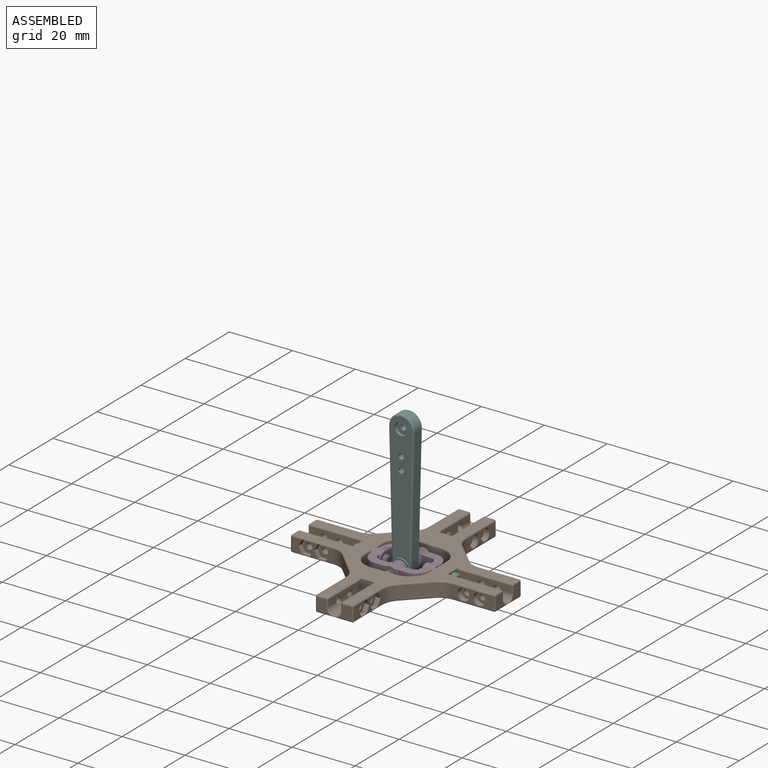
[diagram: assembled view]
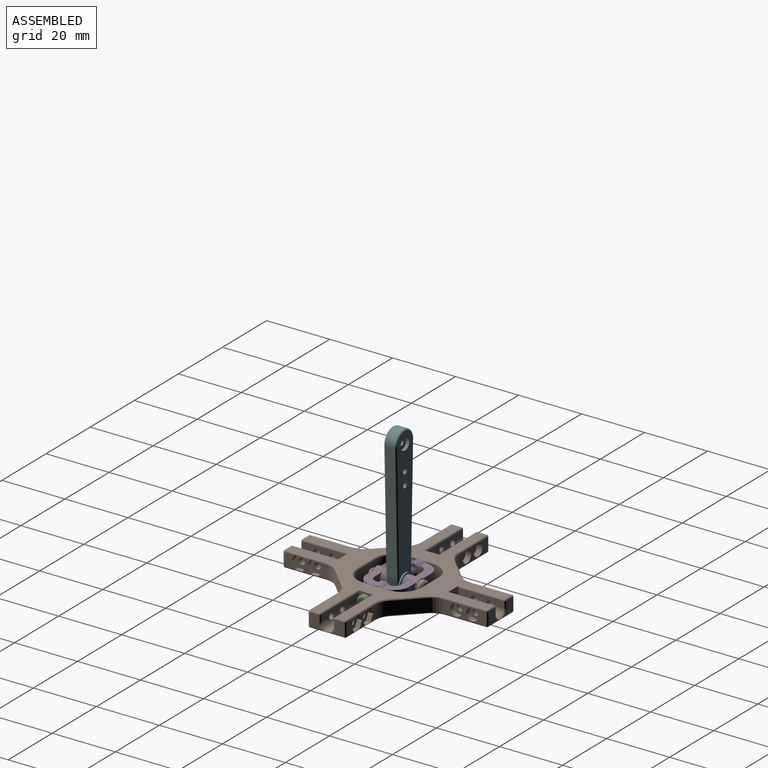
[diagram: assembled view, second angle]
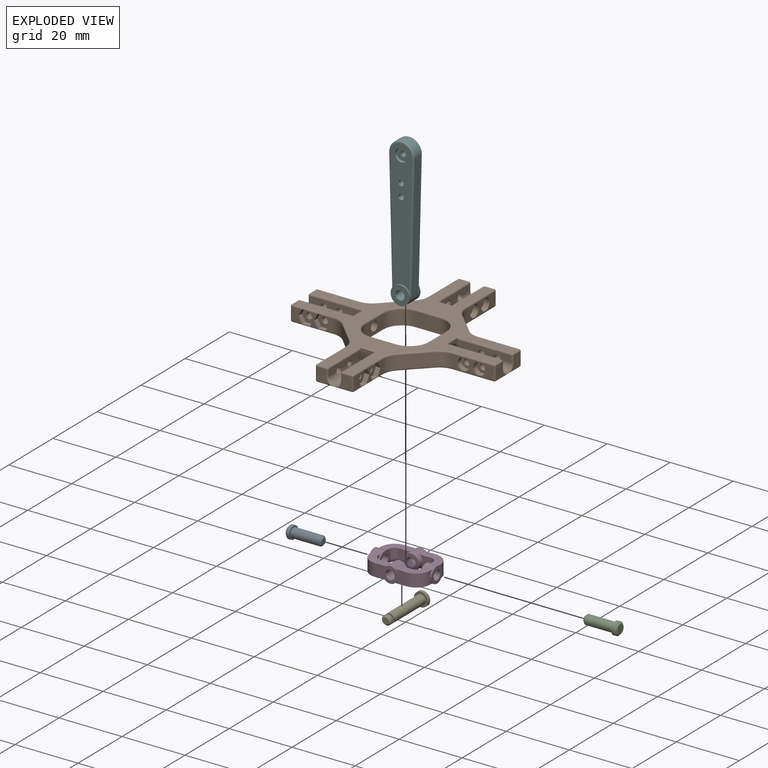
[diagram: exploded view]
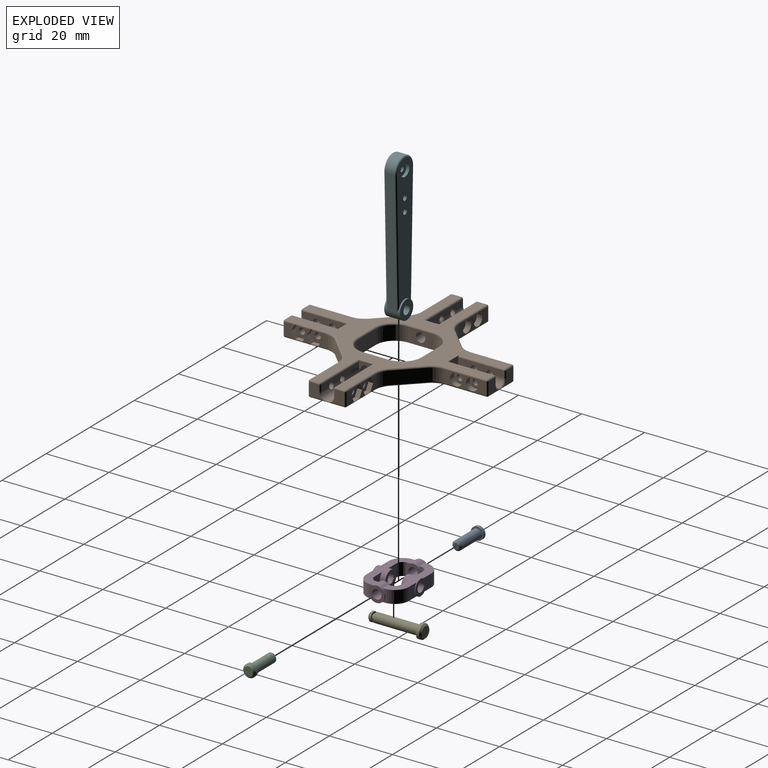
[diagram: exploded view, second angle]
ASSEMBLY  parts=6 mates=5
PART A: 7 faces, bbox 11x4x4 mm
  f0: plane 2x2mm, normal (-1,0,0), area 3.1mm2, adj f6
  f1: plane 3x3mm, normal (1,0,0), area 7.1mm2, adj f2
  f2: cone r=2mm half-angle=45deg, axis (-1,0,0), area 7.8mm2, adj f1,f3
  f3: cylinder r=2mm len=4mm, axis (1,0,0), area 12.6mm2, adj f2,f4
  f4: plane 4x4mm, normal (-1,0,0), area 5.5mm2, adj f3,f5
  f5: cylinder r=1.5mm len=9mm, axis (1,0,0), area 84.8mm2, adj f4,f6
  f6: cone r=1mm half-angle=45deg, axis (1,0,0), area 5.6mm2, adj f0,f5
PART B: 264 faces, bbox 65x65x5.6 mm
  f0: plane 4x3.23mm, normal (1,0,0), area 10.6mm2, adj f47,f48,f51,f227,f258
  f1: plane 4x2.46mm, normal (1,0,0), area 5.2mm2, adj f40,f41,f44,f45,f227,f258
  f2: plane 4x2.26mm, normal (0,1,0), area 6.7mm2, adj f107,f108,f166,f214,f251
  f3: plane 4x2.46mm, normal (0,1,0), area 5.2mm2, adj f110,f111,f114,f115,f214,f251
  f4: plane 4x2.26mm, normal (-1,0,0), area 6.7mm2, adj f72,f73,f164,f201,f244
  f5: plane 4x2.46mm, normal (-1,0,0), area 5.2mm2, adj f75,f76,f79,f80,f201,f244
  f6: plane 4x2.26mm, normal (0,-1,0), area 6.7mm2, adj f142,f143,f162,f192,f241
  f7: plane 4x2.46mm, normal (0,-1,0), area 5.2mm2, adj f145,f146,f149,f150,f192,f241
  f8: plane 5.1x4.55mm, normal (0,1,0), area 9.9mm2, adj f18,f20,f62,f63,f64,f197,f222
  f9: plane 5.1x4.55mm, normal (0,-1,0), area 9.9mm2, adj f18,f21,f27,f28,f29,f184,f223
  f10: plane 8x4.5mm, normal (0,1,0), area 28.9mm2, adj f19,f21,f170,f173,f180
  f11: plane 8x4.5mm, normal (1,0,0), area 36mm2, adj f19,f170,f171,f176
  f12: plane 8x4.5mm, normal (0,-1,0), area 28.9mm2, adj f19,f20,f171,f172,f179
  f13: plane 7.5x7.5mm, normal (0.71,-0.71,0), area 42.4mm2, adj f167,f168,f229,f260
  f14: plane 7.5x7.5mm, normal (0.71,0.71,0), area 42.4mm2, adj f165,f166,f216,f253
  f15: plane 7.5x7.5mm, normal (-0.71,0.71,0), area 42.4mm2, adj f163,f164,f203,f246
  f16: plane 7.5x7.5mm, normal (-0.71,-0.71,0), area 42.4mm2, adj f162,f169,f190,f239
  f17: plane 8x4.5mm, normal (-1,0,0), area 36mm2, adj f19,f172,f173,f183
  f18: plane 64x64mm, normal (0,0,1), area 801mm2, adj f8,f9,f174,f175,f176,f177,f178,f179
  f19: plane 64x64mm, normal (0,0,-1), area 1157.9mm2, adj f10,f11,f12,f17,f53,f88,f123,f158
  f20: cylinder r=1.5mm len=5mm, axis (0,-1,0), area 47.1mm2, adj f8,f12
  f21: cylinder r=1.5mm len=5mm, axis (0,-1,0), area 47.1mm2, adj f9,f10
  f22: plane 4x3.92mm, normal (0,-1,0), area 12.4mm2, adj f51,f53,f55,f56,f225
  f23: plane 4x2.26mm, normal (1,0,0), area 6.7mm2, adj f37,f38,f168,f227,f258
  f24: cylinder r=1mm len=2.71mm, axis (-1,0,0), area 15.8mm2, adj f27,f28,f50
  f25: cylinder r=1mm len=2.71mm, axis (-1,0,0), area 15.8mm2, adj f27,f28,f43
  f26: plane 13.03x4mm, normal (-1,0,0), area 29.4mm2, adj f33,f35,f52,f169,f188,f237
  f27: plane 17x2mm, normal (-1,0,0), area 30.9mm2, adj f9,f24,f25,f28,f56,f223
  f28: cylinder r=2.05mm len=17mm, axis (0,1,0), area 103mm2, adj f9,f24,f25,f27,f29,f31,f32,f55
  f29: plane 17x2mm, normal (1,0,0), area 30.9mm2, adj f9,f28,f31,f32,f54,f184
  f30: plane 4x3.92mm, normal (0,-1,0), area 12.4mm2, adj f52,f53,f54,f55,f186
  f31: cylinder r=1mm len=2.46mm, axis (-1,0,0), area 14.2mm2, adj f28,f29,f36
  f32: cylinder r=1mm len=2.46mm, axis (-1,0,0), area 14.2mm2, adj f28,f29,f34
  f33: cylinder r=1.9mm len=3.8mm, axis (-1,0,0), area 20.9mm2, adj f26,f34
  f34: plane 3.8x3.8mm, normal (-1,0,0), area 8.2mm2, adj f32,f33
  f35: cylinder r=1.9mm len=3.8mm, axis (-1,0,0), area 20.9mm2, adj f26,f36
  f36: plane 3.8x3.8mm, normal (-1,0,0), area 8.2mm2, adj f31,f35
  f37: plane 2.1x1.5mm, normal (0,-0.87,0.5), area 3.6mm2, adj f23,f38,f42,f43,f258
  f38: plane 2.1x1.5mm, normal (0,-0.87,-0.5), area 3.6mm2, adj f23,f37,f39,f43,f227
  f39: plane 2.43x1.49mm, normal (0,0,-1), area 3.6mm2, adj f38,f40,f43,f227
  f40: plane 2.1x1.5mm, normal (0,0.87,-0.5), area 3.6mm2, adj f1,f39,f41,f43,f227
  f41: plane 2.1x1.5mm, normal (0,0.87,0.5), area 3.6mm2, adj f1,f40,f42,f43,f258
  f42: plane 2.43x1.49mm, normal (0,0,1), area 3.6mm2, adj f37,f41,f43,f258
  f43: plane 4.85x4.2mm, normal (1,0,0), area 12.1mm2, adj f25,f37,f38,f39,f40,f41,f42
  f44: plane 2.1x1.5mm, normal (0,-0.87,0.5), area 3.6mm2, adj f1,f45,f49,f50,f258
  f45: plane 2.1x1.5mm, normal (0,-0.87,-0.5), area 3.6mm2, adj f1,f44,f46,f50,f227
  f46: plane 2.43x1.49mm, normal (0,0,-1), area 3.6mm2, adj f45,f47,f50,f227
  f47: plane 2.1x1.5mm, normal (0,0.87,-0.5), area 3.6mm2, adj f0,f46,f48,f50,f227
  f48: plane 2.1x1.5mm, normal (0,0.87,0.5), area 3.6mm2, adj f0,f47,f49,f50,f258
  f49: plane 2.43x1.49mm, normal (0,0,1), area 3.6mm2, adj f44,f48,f50,f258
  f50: plane 4.85x4.2mm, normal (1,0,0), area 12.1mm2, adj f24,f44,f45,f46,f47,f48,f49
  f51: cylinder r=0.5mm len=4mm, axis (0,0,-1), area 3.1mm2, adj f0,f22,f226,f257
  f52: cylinder r=0.5mm len=4mm, axis (0,0,1), area 3.1mm2, adj f26,f30,f187,f236
  f53: cylinder r=0.5mm len=11mm, axis (-1,0,0), area 8mm2, adj f19,f22,f30,f55,f236,f257
  f54: cylinder r=0.5mm len=2mm, axis (0,0,-1), area 1.6mm2, adj f29,f30,f55,f185
  f55: torus R=2.55mm, axis (0,-1,0), area 4.9mm2, adj f22,f28,f30,f53,f54,f56
  f56: cylinder r=0.5mm len=2mm, axis (0,0,1), area 1.6mm2, adj f22,f27,f55,f224
  f57: plane 4x3.92mm, normal (0,1,0), area 12.4mm2, adj f86,f88,f90,f91,f199
  f58: plane 4x3.23mm, normal (-1,0,0), area 10.6mm2, adj f82,f83,f86,f201,f244
  f59: cylinder r=1mm len=2.71mm, axis (1,0,0), area 15.8mm2, adj f62,f63,f85
  f60: cylinder r=1mm len=2.71mm, axis (1,0,0), area 15.8mm2, adj f62,f63,f78
  f61: plane 13.03x4mm, normal (1,0,0), area 29.4mm2, adj f68,f70,f87,f165,f218,f255
  f62: plane 17x2mm, normal (1,0,0), area 30.9mm2, adj f8,f59,f60,f63,f91,f197
  f63: cylinder r=2.05mm len=17mm, axis (0,-1,0), area 103mm2, adj f8,f59,f60,f62,f64,f66,f67,f90
  f64: plane 17x2mm, normal (-1,0,0), area 30.9mm2, adj f8,f63,f66,f67,f89,f222
  f65: plane 4x3.92mm, normal (0,1,0), area 12.4mm2, adj f87,f88,f89,f90,f220
  f66: cylinder r=1mm len=2.46mm, axis (1,0,0), area 14.2mm2, adj f63,f64,f71
  f67: cylinder r=1mm len=2.46mm, axis (1,0,0), area 14.2mm2, adj f63,f64,f69
  f68: cylinder r=1.9mm len=3.8mm, axis (1,0,0), area 20.9mm2, adj f61,f69
  f69: plane 3.8x3.8mm, normal (1,0,0), area 8.2mm2, adj f67,f68
  f70: cylinder r=1.9mm len=3.8mm, axis (1,0,0), area 20.9mm2, adj f61,f71
  f71: plane 3.8x3.8mm, normal (1,0,0), area 8.2mm2, adj f66,f70
  f72: plane 2.1x1.5mm, normal (0,0.87,0.5), area 3.6mm2, adj f4,f73,f77,f78,f244
  f73: plane 2.1x1.5mm, normal (0,0.87,-0.5), area 3.6mm2, adj f4,f72,f74,f78,f201
  f74: plane 2.43x1.49mm, normal (0,0,-1), area 3.6mm2, adj f73,f75,f78,f201
  f75: plane 2.1x1.5mm, normal (0,-0.87,-0.5), area 3.6mm2, adj f5,f74,f76,f78,f201
  f76: plane 2.1x1.5mm, normal (0,-0.87,0.5), area 3.6mm2, adj f5,f75,f77,f78,f244
  f77: plane 2.43x1.49mm, normal (0,0,1), area 3.6mm2, adj f72,f76,f78,f244
  f78: plane 4.85x4.2mm, normal (-1,0,0), area 12.1mm2, adj f60,f72,f73,f74,f75,f76,f77
  f79: plane 2.1x1.5mm, normal (0,0.87,0.5), area 3.6mm2, adj f5,f80,f84,f85,f244
  f80: plane 2.1x1.5mm, normal (0,0.87,-0.5), area 3.6mm2, adj f5,f79,f81,f85,f201
  f81: plane 2.43x1.49mm, normal (0,0,-1), area 3.6mm2, adj f80,f82,f85,f201
  f82: plane 2.1x1.5mm, normal (0,-0.87,-0.5), area 3.6mm2, adj f58,f81,f83,f85,f201
  f83: plane 2.1x1.5mm, normal (0,-0.87,0.5), area 3.6mm2, adj f58,f82,f84,f85,f244
  f84: plane 2.43x1.49mm, normal (0,0,1), area 3.6mm2, adj f79,f83,f85,f244
  f85: plane 4.85x4.2mm, normal (-1,0,0), area 12.1mm2, adj f59,f79,f80,f81,f82,f83,f84
  f86: cylinder r=0.5mm len=4mm, axis (0,0,-1), area 3.1mm2, adj f57,f58,f200,f243
  f87: cylinder r=0.5mm len=4mm, axis (0,0,1), area 3.1mm2, adj f61,f65,f219,f256
  f88: cylinder r=0.5mm len=11mm, axis (1,0,0), area 8mm2, adj f19,f57,f65,f90,f243,f256
  f89: cylinder r=0.5mm len=2mm, axis (0,0,-1), area 1.6mm2, adj f64,f65,f90,f221
  f90: torus R=2.55mm, axis (0,1,0), area 4.9mm2, adj f57,f63,f65,f88,f89,f91
  f91: cylinder r=0.5mm len=2mm, axis (0,0,1), area 1.6mm2, adj f57,f62,f90,f198
  f92: plane 4x3.92mm, normal (1,0,0), area 12.4mm2, adj f121,f123,f125,f126,f212
  f93: plane 4x3.23mm, normal (0,1,0), area 10.6mm2, adj f117,f118,f121,f214,f251
  f94: cylinder r=1mm len=2.71mm, axis (0,-1,0), area 15.8mm2, adj f97,f98,f120
  f95: cylinder r=1mm len=2.71mm, axis (0,-1,0), area 15.8mm2, adj f97,f98,f113
  f96: plane 13.03x4mm, normal (0,-1,0), area 29.4mm2, adj f103,f105,f122,f167,f231,f262
  f97: plane 14.5x2mm, normal (0,-1,0), area 25.9mm2, adj f94,f95,f98,f126,f175,f210
  f98: cylinder r=2.05mm len=14.5mm, axis (-1,0,0), area 86.9mm2, adj f94,f95,f97,f99,f101,f102,f125,f175
  f99: plane 14.5x2mm, normal (0,1,0), area 25.9mm2, adj f98,f101,f102,f124,f175,f235
  f100: plane 4x3.92mm, normal (1,0,0), area 12.4mm2, adj f122,f123,f124,f125,f233
  f101: cylinder r=1mm len=2.46mm, axis (0,-1,0), area 14.2mm2, adj f98,f99,f106
  f102: cylinder r=1mm len=2.46mm, axis (0,-1,0), area 14.2mm2, adj f98,f99,f104
  f103: cylinder r=1.9mm len=3.8mm, axis (0,-1,0), area 20.9mm2, adj f96,f104
  f104: plane 3.8x3.8mm, normal (0,-1,0), area 8.2mm2, adj f102,f103
  f105: cylinder r=1.9mm len=3.8mm, axis (0,-1,0), area 20.9mm2, adj f96,f106
  f106: plane 3.8x3.8mm, normal (0,-1,0), area 8.2mm2, adj f101,f105
  f107: plane 2.1x1.5mm, normal (0.87,0,0.5), area 3.6mm2, adj f2,f108,f112,f113,f251
  f108: plane 2.1x1.5mm, normal (0.87,0,-0.5), area 3.6mm2, adj f2,f107,f109,f113,f214
  f109: plane 2.43x1.49mm, normal (0,0,-1), area 3.6mm2, adj f108,f110,f113,f214
  f110: plane 2.1x1.5mm, normal (-0.87,0,-0.5), area 3.6mm2, adj f3,f109,f111,f113,f214
  f111: plane 2.1x1.5mm, normal (-0.87,0,0.5), area 3.6mm2, adj f3,f110,f112,f113,f251
  f112: plane 2.43x1.49mm, normal (0,0,1), area 3.6mm2, adj f107,f111,f113,f251
  f113: plane 4.85x4.2mm, normal (0,1,0), area 12.1mm2, adj f95,f107,f108,f109,f110,f111,f112
  f114: plane 2.1x1.5mm, normal (0.87,0,0.5), area 3.6mm2, adj f3,f115,f119,f120,f251
  f115: plane 2.1x1.5mm, normal (0.87,0,-0.5), area 3.6mm2, adj f3,f114,f116,f120,f214
  f116: plane 2.43x1.49mm, normal (0,0,-1), area 3.6mm2, adj f115,f117,f120,f214
  f117: plane 2.1x1.5mm, normal (-0.87,0,-0.5), area 3.6mm2, adj f93,f116,f118,f120,f214
  f118: plane 2.1x1.5mm, normal (-0.87,0,0.5), area 3.6mm2, adj f93,f117,f119,f120,f251
  f119: plane 2.43x1.49mm, normal (0,0,1), area 3.6mm2, adj f114,f118,f120,f251
  f120: plane 4.85x4.2mm, normal (0,1,0), area 12.1mm2, adj f94,f114,f115,f116,f117,f118,f119
  f121: cylinder r=0.5mm len=4mm, axis (0,0,-1), area 3.1mm2, adj f92,f93,f213,f250
  f122: cylinder r=0.5mm len=4mm, axis (0,0,1), area 3.1mm2, adj f96,f100,f232,f263
  f123: cylinder r=0.5mm len=11mm, axis (0,-1,0), area 8mm2, adj f19,f92,f100,f125,f250,f263
  f124: cylinder r=0.5mm len=2mm, axis (0,0,-1), area 1.6mm2, adj f99,f100,f125,f234
  f125: torus R=2.55mm, axis (1,0,0), area 4.9mm2, adj f92,f98,f100,f123,f124,f126
  f126: cylinder r=0.5mm len=2mm, axis (0,0,1), area 1.6mm2, adj f92,f97,f125,f211
  f127: plane 4x3.92mm, normal (-1,0,0), area 12.4mm2, adj f156,f158,f160,f161,f194
  f128: plane 4x3.23mm, normal (0,-1,0), area 10.6mm2, adj f152,f153,f156,f192,f241
  f129: cylinder r=1mm len=2.71mm, axis (0,1,0), area 15.8mm2, adj f132,f133,f155
  f130: cylinder r=1mm len=2.71mm, axis (0,1,0), area 15.8mm2, adj f132,f133,f148
  f131: plane 13.03x4mm, normal (0,1,0), area 29.4mm2, adj f138,f140,f157,f163,f205,f248
  f132: plane 14.5x2mm, normal (0,1,0), area 25.9mm2, adj f129,f130,f133,f161,f174,f196
  f133: cylinder r=2.05mm len=14.5mm, axis (1,0,0), area 86.9mm2, adj f129,f130,f132,f134,f136,f137,f160,f174
  f134: plane 14.5x2mm, normal (0,-1,0), area 25.9mm2, adj f133,f136,f137,f159,f174,f209
  f135: plane 4x3.92mm, normal (-1,0,0), area 12.4mm2, adj f157,f158,f159,f160,f207
  f136: cylinder r=1mm len=2.46mm, axis (0,1,0), area 14.2mm2, adj f133,f134,f141
  f137: cylinder r=1mm len=2.46mm, axis (0,1,0), area 14.2mm2, adj f133,f134,f139
  f138: cylinder r=1.9mm len=3.8mm, axis (0,1,0), area 20.9mm2, adj f131,f139
  f139: plane 3.8x3.8mm, normal (0,1,0), area 8.2mm2, adj f137,f138
  f140: cylinder r=1.9mm len=3.8mm, axis (0,1,0), area 20.9mm2, adj f131,f141
  f141: plane 3.8x3.8mm, normal (0,1,0), area 8.2mm2, adj f136,f140
  f142: plane 2.1x1.5mm, normal (-0.87,0,0.5), area 3.6mm2, adj f6,f143,f147,f148,f241
  f143: plane 2.1x1.5mm, normal (-0.87,0,-0.5), area 3.6mm2, adj f6,f142,f144,f148,f192
  f144: plane 2.43x1.49mm, normal (0,0,-1), area 3.6mm2, adj f143,f145,f148,f192
  f145: plane 2.1x1.5mm, normal (0.87,0,-0.5), area 3.6mm2, adj f7,f144,f146,f148,f192
  f146: plane 2.1x1.5mm, normal (0.87,0,0.5), area 3.6mm2, adj f7,f145,f147,f148,f241
  f147: plane 2.43x1.49mm, normal (0,0,1), area 3.6mm2, adj f142,f146,f148,f241
  f148: plane 4.85x4.2mm, normal (0,-1,0), area 12.1mm2, adj f130,f142,f143,f144,f145,f146,f147
  f149: plane 2.1x1.5mm, normal (-0.87,0,0.5), area 3.6mm2, adj f7,f150,f154,f155,f241
  f150: plane 2.1x1.5mm, normal (-0.87,0,-0.5), area 3.6mm2, adj f7,f149,f151,f155,f192
  f151: plane 2.43x1.49mm, normal (0,0,-1), area 3.6mm2, adj f150,f152,f155,f192
  f152: plane 2.1x1.5mm, normal (0.87,0,-0.5), area 3.6mm2, adj f128,f151,f153,f155,f192
  f153: plane 2.1x1.5mm, normal (0.87,0,0.5), area 3.6mm2, adj f128,f152,f154,f155,f241
  f154: plane 2.43x1.49mm, normal (0,0,1), area 3.6mm2, adj f149,f153,f155,f241
  f155: plane 4.85x4.2mm, normal (0,-1,0), area 12.1mm2, adj f129,f149,f150,f151,f152,f153,f154
  f156: cylinder r=0.5mm len=4mm, axis (0,0,-1), area 3.1mm2, adj f127,f128,f193,f242
  f157: cylinder r=0.5mm len=4mm, axis (0,0,1), area 3.1mm2, adj f131,f135,f206,f249
  f158: cylinder r=0.5mm len=11mm, axis (0,1,0), area 8mm2, adj f19,f127,f135,f160,f242,f249
  f159: cylinder r=0.5mm len=2mm, axis (0,0,-1), area 1.6mm2, adj f134,f135,f160,f208
  f160: torus R=2.55mm, axis (-1,0,0), area 4.9mm2, adj f127,f133,f135,f158,f159,f161
  f161: cylinder r=0.5mm len=2mm, axis (0,0,1), area 1.6mm2, adj f127,f132,f160,f195
  f162: cylinder r=6mm len=4mm, axis (0,0,-1), area 17.3mm2, adj f6,f16,f191,f240
  f163: cylinder r=6mm len=4mm, axis (0,0,-1), area 17.3mm2, adj f15,f131,f204,f247
  f164: cylinder r=6mm len=4mm, axis (0,0,-1), area 17.3mm2, adj f4,f15,f202,f245
  f165: cylinder r=6mm len=4mm, axis (0,0,1), area 17.3mm2, adj f14,f61,f217,f254
  f166: cylinder r=6mm len=4mm, axis (0,0,-1), area 17.3mm2, adj f2,f14,f215,f252
  f167: cylinder r=6mm len=4mm, axis (0,0,-1), area 17.3mm2, adj f13,f96,f230,f261
  f168: cylinder r=6mm len=4mm, axis (0,0,1), area 17.3mm2, adj f13,f23,f228,f259
  f169: cylinder r=6mm len=4mm, axis (0,0,-1), area 17.3mm2, adj f16,f26,f189,f238
  f170: cylinder r=6mm len=6mm, axis (0,0,1), area 42.4mm2, adj f10,f11,f19,f178
  f171: cylinder r=6mm len=6mm, axis (0,0,-1), area 42.4mm2, adj f11,f12,f19,f177
  f172: cylinder r=6mm len=6mm, axis (0,0,1), area 42.4mm2, adj f12,f17,f19,f181
  f173: cylinder r=6mm len=6mm, axis (0,0,-1), area 42.4mm2, adj f10,f17,f19,f182
  f174: plane 5.1x4.55mm, normal (-1,0,0), area 17mm2, adj f18,f132,f133,f134,f196,f209
  f175: plane 5.1x4.55mm, normal (1,0,0), area 17mm2, adj f18,f97,f98,f99,f210,f235
  f176: cylinder r=0.5mm len=8mm, axis (0,-1,0), area 6.3mm2, adj f11,f18,f177,f178
  f177: torus R=6.5mm, axis (0,0,1), area 7.6mm2, adj f18,f171,f176,f179
  f178: torus R=6.5mm, axis (0,0,1), area 7.6mm2, adj f18,f170,f176,f180
  f179: cylinder r=0.5mm len=8mm, axis (-1,0,0), area 6.3mm2, adj f12,f18,f177,f181
  f180: cylinder r=0.5mm len=8mm, axis (1,0,0), area 6.3mm2, adj f10,f18,f178,f182
  f181: torus R=6.5mm, axis (0,0,1), area 7.6mm2, adj f18,f172,f179,f183
  f182: torus R=6.5mm, axis (0,0,1), area 7.6mm2, adj f18,f173,f180,f183
  f183: cylinder r=0.5mm len=8mm, axis (0,1,0), area 6.3mm2, adj f17,f18,f181,f182
  f184: cylinder r=0.5mm len=17mm, axis (0,-1,0), area 13.4mm2, adj f9,f18,f29,f185
  f185: sphere r=0.5mm, area 0.4mm2, adj f54,f184,f186
  f186: cylinder r=0.5mm len=2.95mm, axis (-1,0,0), area 2.3mm2, adj f18,f30,f185,f187
  f187: sphere r=0.5mm, area 0.4mm2, adj f52,f186,f188
  f188: cylinder r=0.5mm len=13.03mm, axis (0,1,0), area 10.2mm2, adj f18,f26,f187,f189
  f189: torus R=6.5mm, axis (0,0,1), area 3.5mm2, adj f18,f169,f188,f190
  f190: cylinder r=0.5mm len=7.88mm, axis (-0.71,0.71,0), area 8.3mm2, adj f16,f18,f189,f191
  f191: torus R=6.5mm, axis (0,0,1), area 3.5mm2, adj f18,f162,f190,f192
  f192: cylinder r=0.5mm len=13.03mm, axis (-1,0,0), area 9.7mm2, adj f6,f7,f18,f128,f143,f144,f145,f150
  f193: sphere r=0.5mm, area 0.4mm2, adj f156,f192,f194
  f194: cylinder r=0.5mm len=2.95mm, axis (0,1,0), area 2.3mm2, adj f18,f127,f193,f195
  f195: sphere r=0.5mm, area 0.4mm2, adj f161,f194,f196
  f196: cylinder r=0.5mm len=14.5mm, axis (1,0,0), area 11.4mm2, adj f18,f132,f174,f195
  f197: cylinder r=0.5mm len=17mm, axis (0,-1,0), area 13.4mm2, adj f8,f18,f62,f198
  f198: sphere r=0.5mm, area 0.4mm2, adj f91,f197,f199
  f199: cylinder r=0.5mm len=2.95mm, axis (1,0,0), area 2.3mm2, adj f18,f57,f198,f200
  f200: sphere r=0.5mm, area 0.4mm2, adj f86,f199,f201
  f201: cylinder r=0.5mm len=13.03mm, axis (0,1,0), area 9.7mm2, adj f4,f5,f18,f58,f73,f74,f75,f80
  f202: torus R=6.5mm, axis (0,0,1), area 3.5mm2, adj f18,f164,f201,f203
  f203: cylinder r=0.5mm len=7.88mm, axis (0.71,0.71,0), area 8.3mm2, adj f15,f18,f202,f204
  f204: torus R=6.5mm, axis (0,0,1), area 3.5mm2, adj f18,f163,f203,f205
  f205: cylinder r=0.5mm len=13.03mm, axis (1,0,0), area 10.2mm2, adj f18,f131,f204,f206
  f206: sphere r=0.5mm, area 0.4mm2, adj f157,f205,f207
  f207: cylinder r=0.5mm len=2.95mm, axis (0,1,0), area 2.3mm2, adj f18,f135,f206,f208
  f208: sphere r=0.5mm, area 0.4mm2, adj f159,f207,f209
  f209: cylinder r=0.5mm len=14.5mm, axis (-1,0,0), area 11.4mm2, adj f18,f134,f174,f208
  f210: cylinder r=0.5mm len=14.5mm, axis (-1,0,0), area 11.4mm2, adj f18,f97,f175,f211
  f211: sphere r=0.5mm, area 0.4mm2, adj f126,f210,f212
  f212: cylinder r=0.5mm len=2.95mm, axis (0,-1,0), area 2.3mm2, adj f18,f92,f211,f213
  f213: sphere r=0.5mm, area 0.4mm2, adj f121,f212,f214
  f214: cylinder r=0.5mm len=13.03mm, axis (1,0,0), area 9.7mm2, adj f2,f3,f18,f93,f108,f109,f110,f115
  f215: torus R=6.5mm, axis (0,0,1), area 3.5mm2, adj f18,f166,f214,f216
  f216: cylinder r=0.5mm len=7.88mm, axis (0.71,-0.71,0), area 8.3mm2, adj f14,f18,f215,f217
  f217: torus R=6.5mm, axis (0,0,1), area 3.5mm2, adj f18,f165,f216,f218
  f218: cylinder r=0.5mm len=13.03mm, axis (0,-1,0), area 10.2mm2, adj f18,f61,f217,f219
  f219: sphere r=0.5mm, area 0.4mm2, adj f87,f218,f220
  f220: cylinder r=0.5mm len=2.95mm, axis (1,0,0), area 2.3mm2, adj f18,f65,f219,f221
  f221: sphere r=0.5mm, area 0.4mm2, adj f89,f220,f222
  f222: cylinder r=0.5mm len=17mm, axis (0,1,0), area 13.4mm2, adj f8,f18,f64,f221
  f223: cylinder r=0.5mm len=17mm, axis (0,1,0), area 13.4mm2, adj f9,f18,f27,f224
  f224: sphere r=0.5mm, area 0.4mm2, adj f56,f223,f225
  f225: cylinder r=0.5mm len=2.95mm, axis (-1,0,0), area 2.3mm2, adj f18,f22,f224,f226
  f226: sphere r=0.5mm, area 0.4mm2, adj f51,f225,f227
  f227: cylinder r=0.5mm len=13.03mm, axis (0,-1,0), area 9.7mm2, adj f0,f1,f18,f23,f38,f39,f40,f45
  f228: torus R=6.5mm, axis (0,0,1), area 3.5mm2, adj f18,f168,f227,f229
  f229: cylinder r=0.5mm len=7.88mm, axis (-0.71,-0.71,0), area 8.3mm2, adj f13,f18,f228,f230
  f230: torus R=6.5mm, axis (0,0,1), area 3.5mm2, adj f18,f167,f229,f231
  f231: cylinder r=0.5mm len=13.03mm, axis (-1,0,0), area 10.2mm2, adj f18,f96,f230,f232
  f232: sphere r=0.5mm, area 0.4mm2, adj f122,f231,f233
  f233: cylinder r=0.5mm len=2.95mm, axis (0,-1,0), area 2.3mm2, adj f18,f100,f232,f234
  f234: sphere r=0.5mm, area 0.4mm2, adj f124,f233,f235
  f235: cylinder r=0.5mm len=14.5mm, axis (1,0,0), area 11.4mm2, adj f18,f99,f175,f234
  f236: sphere r=0.5mm, area 0.4mm2, adj f52,f53,f237
  f237: cylinder r=0.5mm len=13.03mm, axis (0,-1,0), area 10.2mm2, adj f19,f26,f236,f238
  f238: torus R=6.5mm, axis (0,0,1), area 3.5mm2, adj f19,f169,f237,f239
  f239: cylinder r=0.5mm len=7.88mm, axis (0.71,-0.71,0), area 8.3mm2, adj f16,f19,f238,f240
  f240: torus R=6.5mm, axis (0,0,1), area 3.5mm2, adj f19,f162,f239,f241
  f241: cylinder r=0.5mm len=13.03mm, axis (1,0,0), area 9.7mm2, adj f6,f7,f19,f128,f142,f146,f147,f149
  f242: sphere r=0.5mm, area 0.4mm2, adj f156,f158,f241
  f243: sphere r=0.5mm, area 0.4mm2, adj f86,f88,f244
  f244: cylinder r=0.5mm len=13.03mm, axis (0,-1,0), area 9.7mm2, adj f4,f5,f19,f58,f72,f76,f77,f79
  f245: torus R=6.5mm, axis (0,0,1), area 3.5mm2, adj f19,f164,f244,f246
  f246: cylinder r=0.5mm len=7.88mm, axis (-0.71,-0.71,0), area 8.3mm2, adj f15,f19,f245,f247
  f247: torus R=6.5mm, axis (0,0,1), area 3.5mm2, adj f19,f163,f246,f248
  f248: cylinder r=0.5mm len=13.03mm, axis (-1,0,0), area 10.2mm2, adj f19,f131,f247,f249
  f249: sphere r=0.5mm, area 0.4mm2, adj f157,f158,f248
  f250: sphere r=0.5mm, area 0.4mm2, adj f121,f123,f251
  f251: cylinder r=0.5mm len=13.03mm, axis (-1,0,0), area 9.7mm2, adj f2,f3,f19,f93,f107,f111,f112,f114
  f252: torus R=6.5mm, axis (0,0,1), area 3.5mm2, adj f19,f166,f251,f253
  f253: cylinder r=0.5mm len=7.88mm, axis (-0.71,0.71,0), area 8.3mm2, adj f14,f19,f252,f254
  f254: torus R=6.5mm, axis (0,0,1), area 3.5mm2, adj f19,f165,f253,f255
  f255: cylinder r=0.5mm len=13.03mm, axis (0,1,0), area 10.2mm2, adj f19,f61,f254,f256
  f256: sphere r=0.5mm, area 0.4mm2, adj f87,f88,f255
  f257: sphere r=0.5mm, area 0.4mm2, adj f51,f53,f258
  f258: cylinder r=0.5mm len=13.03mm, axis (0,1,0), area 9.7mm2, adj f0,f1,f19,f23,f37,f41,f42,f44
  f259: torus R=6.5mm, axis (0,0,1), area 3.5mm2, adj f19,f168,f258,f260
  f260: cylinder r=0.5mm len=7.88mm, axis (0.71,0.71,0), area 8.3mm2, adj f13,f19,f259,f261
  f261: torus R=6.5mm, axis (0,0,1), area 3.5mm2, adj f19,f167,f260,f262
  f262: cylinder r=0.5mm len=13.03mm, axis (1,0,0), area 10.2mm2, adj f19,f96,f261,f263
  f263: sphere r=0.5mm, area 0.4mm2, adj f122,f123,f262
PART C: same geometry as A
PART D: 56 faces, bbox 14x20x5 mm
  f0: plane 8x5.25mm, normal (0,0,1), area 23.4mm2, adj f28,f32,f33,f34,f35,f39,f45,f49
  f1: plane 8x5.25mm, normal (0,0,-1), area 23.4mm2, adj f4,f7,f28,f33,f34,f39,f45,f49
  f2: plane 0.91x0.75mm, normal (0,1,0), area 0.3mm2, adj f24,f31,f49
  f3: plane 0.91x0.75mm, normal (0,1,0), area 0.3mm2, adj f25,f31,f49
  f4: plane 0.91x0.75mm, normal (0,1,0), area 0.3mm2, adj f1,f39,f49
  f5: plane 0.91x0.75mm, normal (0,-1,0), area 0.3mm2, adj f24,f36,f49
  f6: plane 0.91x0.75mm, normal (0,-1,0), area 0.3mm2, adj f25,f36,f49
  f7: plane 0.91x0.75mm, normal (0,-1,0), area 0.3mm2, adj f1,f34,f49
  f8: plane 8x5.25mm, normal (0,0,1), area 23.4mm2, adj f12,f13,f17,f19,f22,f23,f45,f46
  f9: plane 8x5.25mm, normal (0,0,1), area 23.4mm2, adj f16,f18,f26,f27,f29,f38,f40,f46
  f10: plane 8x5.25mm, normal (0,0,-1), area 23.4mm2, adj f12,f14,f17,f20,f22,f23,f45,f46
  f11: plane 8x5.25mm, normal (0,0,-1), area 23.4mm2, adj f15,f16,f18,f21,f26,f27,f40,f46
  f12: cylinder r=4.5mm len=4.5mm, axis (0,0,-1), area 27.9mm2, adj f8,f10,f13,f14,f22,f46
  f13: plane 0.91x0.75mm, normal (0,-1,0), area 0.3mm2, adj f8,f12,f46
  f14: plane 0.91x0.75mm, normal (0,-1,0), area 0.3mm2, adj f10,f12,f46
  f15: plane 0.91x0.75mm, normal (0,-1,0), area 0.3mm2, adj f11,f16,f46
  f16: cylinder r=4.5mm len=4.5mm, axis (0,0,-1), area 27.9mm2, adj f9,f11,f15,f26,f29,f46
  f17: cylinder r=2mm len=4mm, axis (0,0,-1), area 12.2mm2, adj f8,f10,f19,f20,f23,f46
  f18: cylinder r=2mm len=4mm, axis (0,0,-1), area 12.2mm2, adj f9,f11,f21,f27,f38,f46
  f19: plane 0.91x0.75mm, normal (0,1,0), area 0.3mm2, adj f8,f17,f46
  f20: plane 0.91x0.75mm, normal (0,1,0), area 0.3mm2, adj f10,f17,f46
  f21: plane 0.91x0.75mm, normal (0,1,0), area 0.3mm2, adj f11,f18,f46
  f22: plane 4x3.5mm, normal (-1,0,0), area 11.2mm2, adj f8,f10,f12,f45
  f23: plane 4x3.5mm, normal (1,0,0), area 11.2mm2, adj f8,f10,f17,f45
  f24: plane 8x5.25mm, normal (0,0,1), area 23.4mm2, adj f2,f5,f30,f31,f36,f37,f40,f49
  f25: plane 8x5.25mm, normal (0,0,-1), area 23.4mm2, adj f3,f6,f30,f31,f36,f37,f40,f49
  f26: plane 4x3.5mm, normal (1,0,0), area 11.2mm2, adj f9,f11,f16,f40
  f27: plane 4x3.5mm, normal (-1,0,0), area 11.2mm2, adj f9,f11,f18,f40
  f28: plane 4x3.5mm, normal (-1,0,0), area 11.2mm2, adj f0,f1,f39,f45
  f29: plane 0.91x0.75mm, normal (0,-1,0), area 0.3mm2, adj f9,f16,f46
  f30: plane 4x3.5mm, normal (1,0,0), area 11.2mm2, adj f24,f25,f31,f40
  f31: cylinder r=4.5mm len=4.5mm, axis (0,0,-1), area 27.9mm2, adj f2,f3,f24,f25,f30,f49
  f32: plane 0.91x0.75mm, normal (0,1,0), area 0.3mm2, adj f0,f39,f49
  f33: plane 4x3.5mm, normal (1,0,0), area 11.2mm2, adj f0,f1,f34,f45
  f34: cylinder r=2mm len=4mm, axis (0,0,-1), area 12.2mm2, adj f0,f1,f7,f33,f35,f49
  f35: plane 0.91x0.75mm, normal (0,-1,0), area 0.3mm2, adj f0,f34,f49
  f36: cylinder r=2mm len=4mm, axis (0,0,-1), area 12.2mm2, adj f5,f6,f24,f25,f37,f49
  f37: plane 4x3.5mm, normal (-1,0,0), area 11.2mm2, adj f24,f25,f36,f40
  f38: plane 0.91x0.75mm, normal (0,1,0), area 0.3mm2, adj f9,f18,f46
  f39: cylinder r=4.5mm len=4.5mm, axis (0,0,-1), area 27.9mm2, adj f0,f1,f4,f28,f32,f49
  f40: cylinder r=2.5mm len=5mm, axis (1,0,0), area 47.5mm2, adj f9,f11,f24,f25,f26,f27,f30,f37
  f41: plane 5x5mm, normal (-1,0,0), area 13mm2, adj f40,f53
  f42: plane 5x5mm, normal (1,0,0), area 13mm2, adj f40,f53
  f43: plane 5x5mm, normal (-1,0,0), area 13mm2, adj f45,f52
  f44: plane 5x5mm, normal (1,0,0), area 13mm2, adj f45,f52
  f45: cylinder r=2.5mm len=5mm, axis (1,0,0), area 47.5mm2, adj f0,f1,f8,f10,f22,f23,f28,f33
  f46: cylinder r=2.5mm len=5mm, axis (0,-1,0), area 31.8mm2, adj f8,f9,f10,f11,f12,f13,f14,f15
  f47: plane 5x5mm, normal (0,-1,0), area 12.6mm2, adj f46,f55
  f48: plane 5x5mm, normal (0,1,0), area 12.6mm2, adj f46,f55
  f49: cylinder r=2.5mm len=5mm, axis (0,-1,0), area 31.8mm2, adj f0,f1,f2,f3,f4,f5,f6,f7
  f50: plane 5x5mm, normal (0,1,0), area 12.6mm2, adj f49,f54
  f51: plane 5x5mm, normal (0,-1,0), area 12.6mm2, adj f49,f54
  f52: cylinder r=1.45mm len=4.5mm, axis (-1,0,0), area 41mm2, adj f43,f44
  f53: cylinder r=1.45mm len=4.5mm, axis (-1,0,0), area 41mm2, adj f41,f42
  f54: cylinder r=1.5mm len=3.5mm, axis (0,-1,0), area 33mm2, adj f50,f51
  f55: cylinder r=1.5mm len=3.5mm, axis (0,-1,0), area 33mm2, adj f47,f48
PART E: 11 faces, bbox 17.5x4.5x4.5 mm
  f0: plane 3.5x3.5mm, normal (1,0,0), area 9.6mm2, adj f1
  f1: cone r=2.25mm half-angle=45deg, axis (-1,0,0), area 8.9mm2, adj f0,f2
  f2: cylinder r=2.25mm len=4.5mm, axis (1,0,0), area 14.1mm2, adj f1,f3
  f3: plane 4.5x4.5mm, normal (-1,0,0), area 8.8mm2, adj f2,f4
  f4: cylinder r=1.5mm len=14.2mm, axis (1,0,0), area 133.8mm2, adj f3,f5
  f5: plane 3x3mm, normal (-1,0,0), area 4.3mm2, adj f4,f6
  f6: cylinder r=0.94mm len=1.88mm, axis (1,0,0), area 4.1mm2, adj f5,f7
  f7: plane 3x3mm, normal (1,0,0), area 4.3mm2, adj f6,f8
  f8: cylinder r=1.5mm len=3mm, axis (1,0,0), area 5.7mm2, adj f7,f9
  f9: cone r=1mm half-angle=45deg, axis (1,0,0), area 5.6mm2, adj f8,f10
  f10: plane 2x2mm, normal (-1,0,0), area 3.1mm2, adj f9
PART F: 22 faces, bbox 8.7x5x47.3 mm
  f0: cylinder r=0.85mm len=2mm, axis (0,1,0), area 10.7mm2, adj f19,f21
  f1: plane 40.08x3mm, normal (1,0,-0.02), area 120.3mm2, adj f2,f9,f12,f15
  f2: cylinder r=4mm len=8mm, axis (0,1,0), area 37.7mm2, adj f1,f3,f13,f16
  f3: plane 40.08x3mm, normal (-1,0,-0.02), area 120.3mm2, adj f2,f9,f14,f17
  f4: cylinder r=0.85mm len=4mm, axis (0,1,0), area 21.4mm2, adj f6,f7
  f5: cylinder r=0.85mm len=4mm, axis (0,1,0), area 21.4mm2, adj f6,f7
  f6: plane 41.9x7mm, normal (0,-1,0), area 229.1mm2, adj f4,f5,f9,f15,f16,f17,f18
  f7: plane 41.9x7mm, normal (0,1,0), area 229.1mm2, adj f4,f5,f9,f12,f13,f14,f20
  f8: cylinder r=1.45mm len=5mm, axis (0,1,0), area 45.6mm2, adj f10,f11
  f9: cylinder r=3mm len=6mm, axis (0,1,0), area 57.3mm2, adj f1,f3,f6,f7,f10,f11,f12,f14
  f10: plane 6x6mm, normal (0,-1,0), area 21.7mm2, adj f8,f9
  f11: plane 6x6mm, normal (0,1,0), area 21.7mm2, adj f8,f9
  f12: cylinder r=0.5mm len=40.09mm, axis (0.02,0,1), area 30.8mm2, adj f1,f7,f9,f13
  f13: torus R=3.5mm, axis (0,-1,0), area 9.4mm2, adj f2,f7,f12,f14
  f14: cylinder r=0.5mm len=40.09mm, axis (0.02,0,-1), area 30.8mm2, adj f3,f7,f9,f13
  f15: cylinder r=0.5mm len=40.09mm, axis (-0.02,0,-1), area 30.8mm2, adj f1,f6,f9,f16
  f16: torus R=3.5mm, axis (0,-1,0), area 9.4mm2, adj f2,f6,f15,f17
  f17: cylinder r=0.5mm len=40.09mm, axis (-0.02,0,1), area 30.8mm2, adj f3,f6,f9,f16
  f18: cylinder r=2mm len=4mm, axis (0,1,0), area 12.6mm2, adj f6,f19
  f19: plane 4x4mm, normal (0,-1,0), area 10.3mm2, adj f0,f18
  f20: cylinder r=2mm len=4mm, axis (0,-1,0), area 12.6mm2, adj f7,f21
  f21: plane 4x4mm, normal (0,1,0), area 10.3mm2, adj f0,f20
PLACE A rot(axis=(0,0,1),180deg) t=(-70.57,51.54,-40)mm
PLACE B rot(axis=(0,0,-1),90deg) t=(-39.9,0,-40)mm
PLACE C rot(axis=(-1,0,0),90deg) t=(70.77,0,11.54)mm
PLACE D rot(axis=(0.71,-0.71,0),180deg) t=(40,0,-40)mm
PLACE E rot(axis=(0,0,1),90deg) t=(39.84,55.97,-40)mm
PLACE F at identity
MATE revolute D.f40 <-> F.f8  axis (0,-1,0) through (0,0,-40)mm
MATE fastened A.f2 <-> B.f28  axis (1,0,0) through (-14.9,0,-40)mm
MATE fastened B.f28 <-> C.f2  axis (1,0,0) through (15.1,0,-40)mm
MATE revolute B.f28 <-> D.f46  axis (-1,0,0) through (0.1,0,-40)mm
MATE fastened E.f1 <-> D.f40  axis (0,1,0) through (0,7,-40)mm
